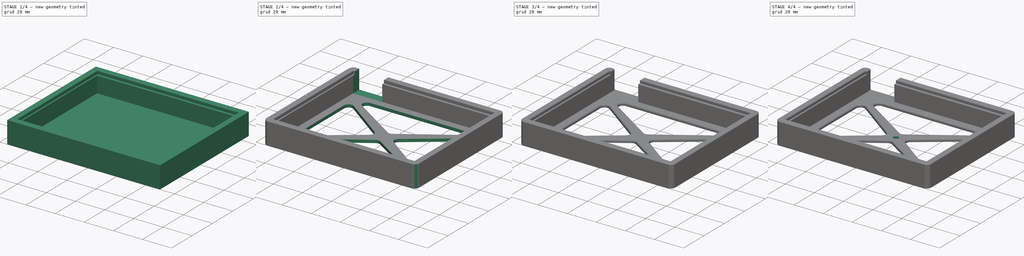
[diagram: build sequence overview — one tinted view per stage of 4, left to right]
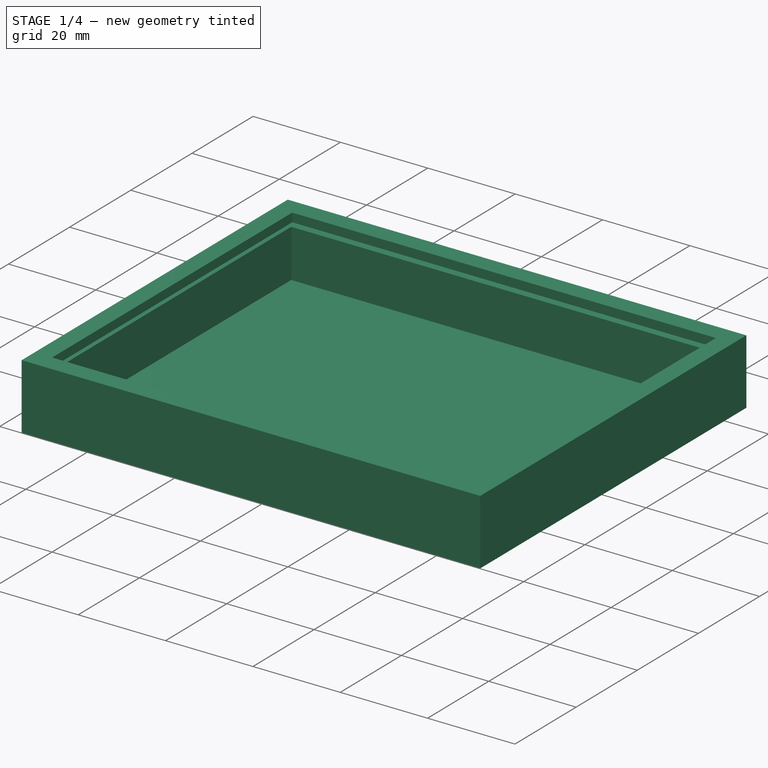
[diagram: stage 1 of 4 — iso view after this stage's code; geometry added in this stage tinted green]
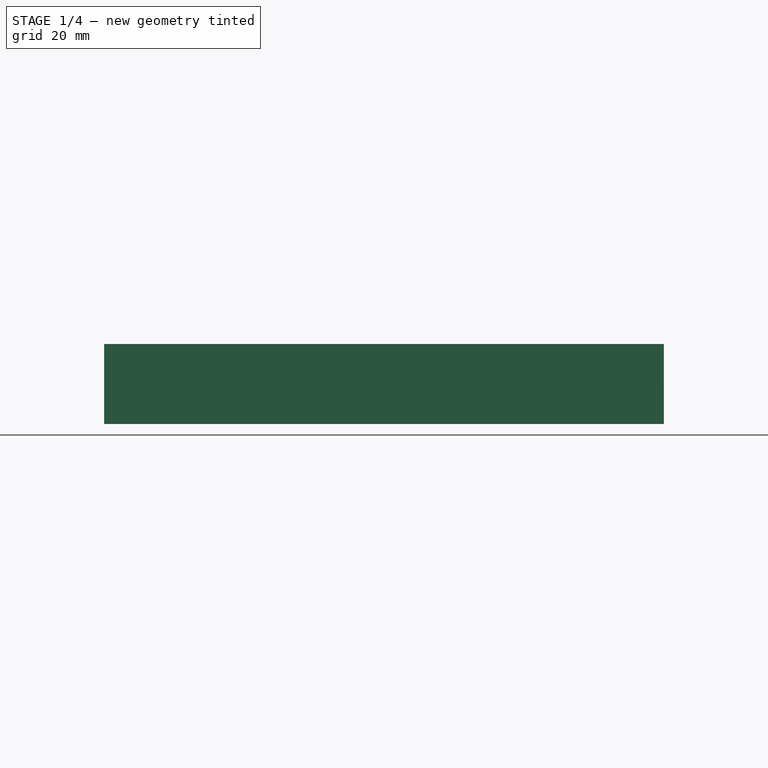
[diagram: stage 1 of 4 — front view after this stage's code; geometry added in this stage tinted green]
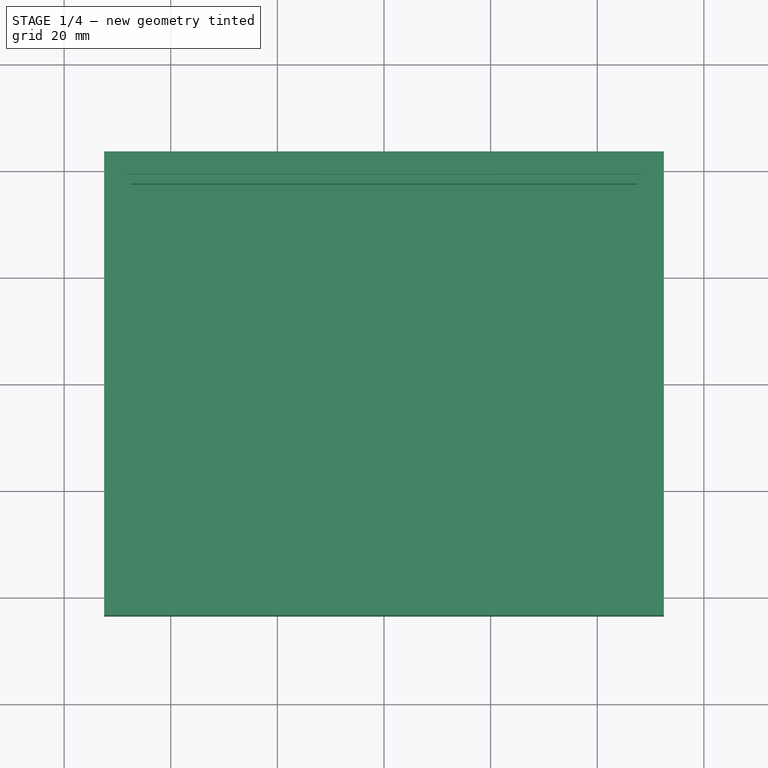
[diagram: stage 1 of 4 — top view after this stage's code; geometry added in this stage tinted green]
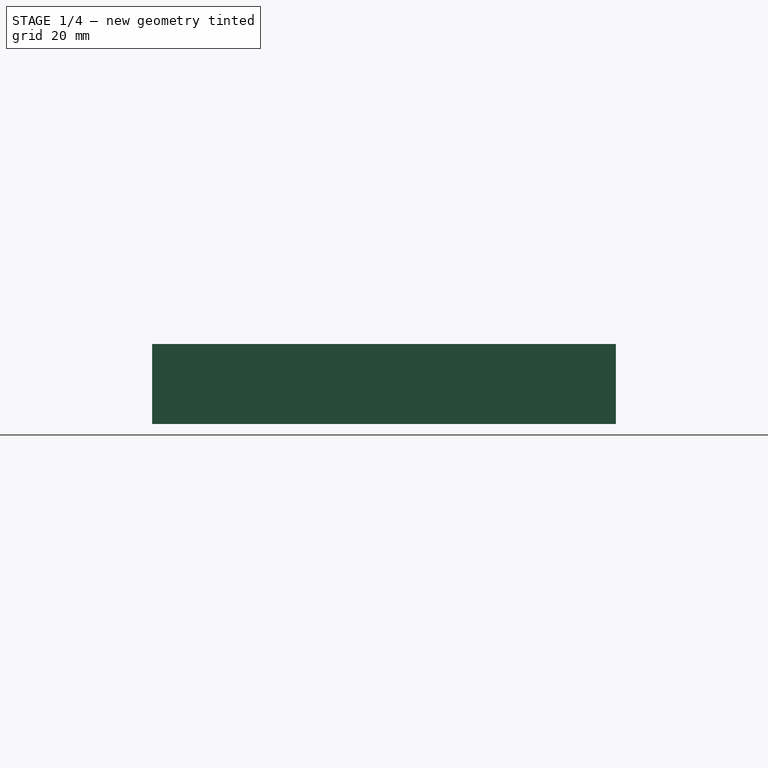
[diagram: stage 1 of 4 — right view after this stage's code; geometry added in this stage tinted green]
FCSTD DOCUMENT  (FreeCAD 0.20R)
Label: dpad-case
License: All rights reserved
LicenseURL: http://en.wikipedia.org/wiki/All_rights_reserved
objects: PartDesign::Fillet×7, Sketcher::SketchObject×6, PartDesign::Pocket×5, PartDesign::Pad×1, PartDesign::Body×1
note: 33 computed .brp shape members not serialized (recipe doc carries the construction recipe); baked Part::Feature solids carry a one-line shape summary decoded from their .brp

FEATURE [Sketcher::SketchObject] Sketch
  FullyConstrained = true
  MapMode = 5
  Support = -> [XY_Plane]
  sketch-geometry (7):
    g0: LineSegment StartX=-52.5 StartY=43.5 StartZ=0 EndX=52.5 EndY=43.5 EndZ=0
    g1: LineSegment StartX=52.5 StartY=43.5 StartZ=0 EndX=52.5 EndY=-43.5 EndZ=0
    g2: LineSegment StartX=52.5 StartY=-43.5 StartZ=0 EndX=-52.5 EndY=-43.5 EndZ=0
    g3: LineSegment StartX=-52.5 StartY=-43.5 StartZ=0 EndX=-52.5 EndY=43.5 EndZ=0
    g4: LineSegment StartX=-52.5 StartY=43.5 StartZ=0 EndX=52.5 EndY=-43.5 EndZ=0
    g5: LineSegment StartX=52.5 StartY=43.5 StartZ=0 EndX=-52.5 EndY=-43.5 EndZ=0
    g6: GeomPoint X=0 Y=0 Z=0
  constraints (17):
    c: Coincident(g0,g1)
    c: Coincident(g1,g2)
    c: Coincident(g2,g3)
    c: Coincident(g3,g0)
    c: Horizontal(g0)
    c: Horizontal(g2)
    c: Vertical(g1)
    c: Vertical(g3)
    c: Coincident(g4,g0)
    c: Coincident(g4,g1)
    c: Coincident(g5,g0)
    c: Coincident(g5,g2)
    c: PointOnObject(g6,g5)
    c: PointOnObject(g6,g4)
    c: Coincident(g6,g-1)
    c: DistanceX(g0,g0) = 105
    c: DistanceY(g3,g3) = 87
FEATURE [PartDesign::Pad] Pad
  Direction = (0,0,1)
  Length = 15
  Length2 = 10
  Profile = -> Sketch
  ReferenceAxis = -> Sketch [N_Axis]
  Type = 0
FEATURE [Sketcher::SketchObject] Sketch001
  FullyConstrained = true
  MapMode = 5
  Placement = pos=(0,0,15) rot=(0,0,1;0rad)
  Support = -> [Pad]
  sketch-geometry (7):
    g0: LineSegment StartX=-48.5 StartY=39.25 StartZ=0 EndX=48.5 EndY=39.25 EndZ=0
    g1: LineSegment StartX=48.5 StartY=39.25 StartZ=0 EndX=48.5 EndY=-39.25 EndZ=0
    g2: LineSegment StartX=48.5 StartY=-39.25 StartZ=0 EndX=-48.5 EndY=-39.25 EndZ=0
    g3: LineSegment StartX=-48.5 StartY=-39.25 StartZ=0 EndX=-48.5 EndY=39.25 EndZ=0
    g4: LineSegment StartX=-48.5 StartY=39.25 StartZ=0 EndX=48.5 EndY=-39.25 EndZ=0
    g5: LineSegment StartX=-48.5 StartY=-39.25 StartZ=0 EndX=48.5 EndY=39.25 EndZ=0
    g6: GeomPoint X=0 Y=0 Z=0
  constraints (17):
    c: Coincident(g0,g1)
    c: Coincident(g1,g2)
    c: Coincident(g2,g3)
    c: Coincident(g3,g0)
    c: Horizontal(g0)
    c: Horizontal(g2)
    c: Vertical(g1)
    c: Vertical(g3)
    c: Coincident(g4,g0)
    c: Coincident(g4,g1)
    c: Coincident(g5,g2)
    c: Coincident(g5,g0)
    c: PointOnObject(g6,g4)
    c: PointOnObject(g6,g5)
    c: Coincident(g6,g-1)
    c: DistanceX(g0,g0) = 97
    c: DistanceY(g3,g3) = 78.5
FEATURE [PartDesign::Pocket] Pocket
  BaseFeature = -> Pad
  Direction = (0,0,-1)
  Length = 2
  Length2 = 5
  Profile = -> Sketch001
  ReferenceAxis = -> Sketch001 [N_Axis]
  Type = 0
FEATURE [Sketcher::SketchObject] Sketch002
  FullyConstrained = true
  MapMode = 5
  Placement = pos=(0,0,13) rot=(0,0,1;0rad)
  Support = -> [Pocket]
  sketch-geometry (7):
    g0: LineSegment StartX=-47.5 StartY=37.5 StartZ=0 EndX=47.5 EndY=37.5 EndZ=0
    g1: LineSegment StartX=47.5 StartY=37.5 StartZ=0 EndX=47.5 EndY=-37.5 EndZ=0
    g2: LineSegment StartX=47.5 StartY=-37.5 StartZ=0 EndX=-47.5 EndY=-37.5 EndZ=0
    g3: LineSegment StartX=-47.5 StartY=-37.5 StartZ=0 EndX=-47.5 EndY=37.5 EndZ=0
    g4: LineSegment StartX=-47.5 StartY=37.5 StartZ=0 EndX=47.5 EndY=-37.5 EndZ=0
    g5: LineSegment StartX=47.5 StartY=37.5 StartZ=0 EndX=-47.5 EndY=-37.5 EndZ=0
    g6: GeomPoint X=0 Y=0 Z=0
  constraints (17):
    c: Coincident(g0,g1)
    c: Coincident(g1,g2)
    c: Coincident(g2,g3)
    c: Coincident(g3,g0)
    c: Horizontal(g0)
    c: Horizontal(g2)
    c: Vertical(g1)
    c: Vertical(g3)
    c: Coincident(g4,g0)
    c: Coincident(g4,g1)
    c: Coincident(g5,g0)
    c: Coincident(g5,g2)
    c: PointOnObject(g6,g4)
    c: PointOnObject(g6,g5)
    c: Coincident(g-1,g6)
    c: DistanceX(g0,g0) = 95
    c: DistanceY(g3,g3) = 75
FEATURE [PartDesign::Pocket] Pocket001
  BaseFeature = -> Pocket
  Direction = (0,0,-1)
  Length = 11
  Length2 = 5
  Profile = -> Sketch002
  ReferenceAxis = -> Sketch002 [N_Axis]
  Type = 0
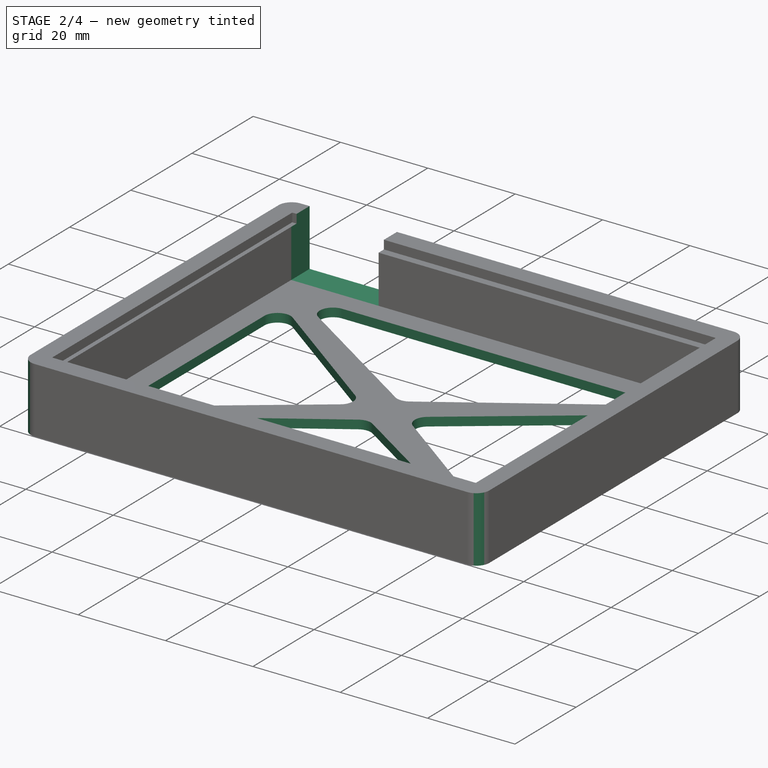
[diagram: stage 2 of 4 — iso view after this stage's code; geometry added in this stage tinted green]
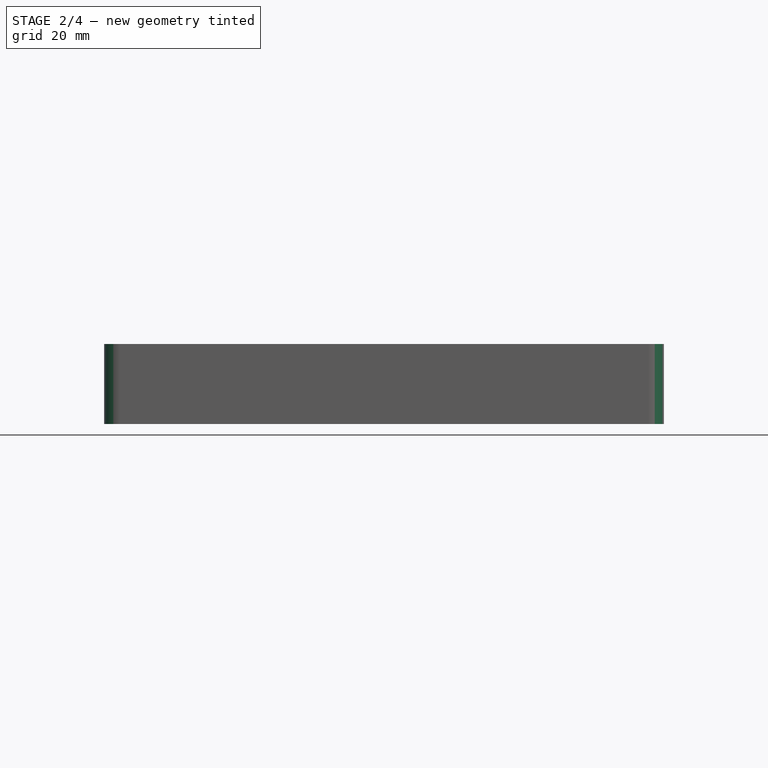
[diagram: stage 2 of 4 — front view after this stage's code; geometry added in this stage tinted green]
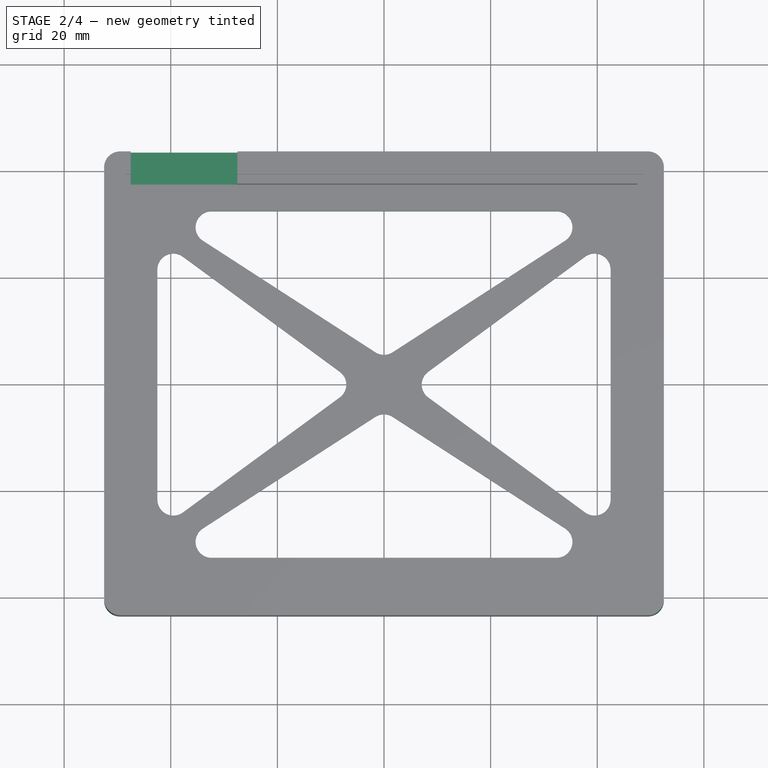
[diagram: stage 2 of 4 — top view after this stage's code; geometry added in this stage tinted green]
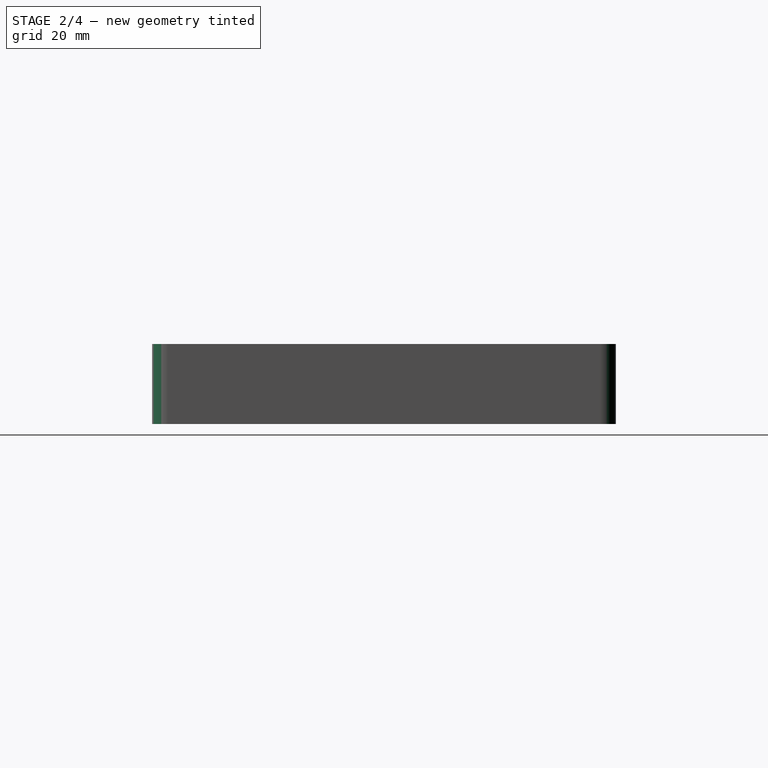
[diagram: stage 2 of 4 — right view after this stage's code; geometry added in this stage tinted green]
FEATURE [Sketcher::SketchObject] Sketch003
  ExternalGeometry = -> [Pocket001]
  FullyConstrained = true
  MapMode = 5
  Placement = pos=(0,43.5,0) rot=(0,0.707107,0.707107;3.14159rad)
  Support = -> [Pocket001]
  sketch-geometry (4):
    g0: LineSegment StartX=47.5 StartY=15 StartZ=0 EndX=27.5 EndY=15 EndZ=0
    g1: LineSegment StartX=27.5 StartY=15 StartZ=0 EndX=27.5 EndY=2 EndZ=0
    g2: LineSegment StartX=27.5 StartY=2 StartZ=0 EndX=47.5 EndY=2 EndZ=0
    g3: LineSegment StartX=47.5 StartY=2 StartZ=0 EndX=47.5 EndY=15 EndZ=0
  constraints (11):
    c: Coincident(g0,g1)
    c: Coincident(g1,g2)
    c: Coincident(g2,g3)
    c: Coincident(g3,g0)
    c: Horizontal(g0)
    c: Horizontal(g2)
    c: Vertical(g1)
    c: Vertical(g3)
    c: DistanceX(g0,g0) = 20
    c: Coincident(g2,g-3)
    c: PointOnObject(g0,g-4)
FEATURE [PartDesign::Pocket] Pocket002
  BaseFeature = -> Pocket001
  Direction = (0,-1,2e-16)
  Length = 6
  Length2 = 5
  Profile = -> Sketch003
  ReferenceAxis = -> Sketch003 [N_Axis]
  Type = 0
FEATURE [Sketcher::SketchObject] Sketch004
  ExternalGeometry = -> [Pocket002]
  FullyConstrained = true
  MapMode = 5
  Placement = pos=(0,0,2) rot=(0,0,1;0rad)
  Support = -> [Pocket002]
  sketch-geometry (12):
    g0: LineSegment StartX=-42.5 StartY=32.5 StartZ=0 EndX=0 EndY=5 EndZ=0
    g1: LineSegment StartX=0 StartY=5 StartZ=0 EndX=42.5 EndY=32.5 EndZ=0
    g2: LineSegment StartX=42.5 StartY=32.5 StartZ=0 EndX=-42.5 EndY=32.5 EndZ=0
    g3: LineSegment StartX=-42.5 StartY=-32.5 StartZ=0 EndX=0 EndY=-5 EndZ=0
    g4: LineSegment StartX=0 StartY=-5 StartZ=0 EndX=42.5 EndY=-32.5 EndZ=0
    g5: LineSegment StartX=42.5 StartY=-32.5 StartZ=0 EndX=-42.5 EndY=-32.5 EndZ=0
    g6: LineSegment StartX=42.5 StartY=27.5 StartZ=0 EndX=42.5 EndY=-27.5 EndZ=0
    g7: LineSegment StartX=42.5 StartY=-27.5 StartZ=0 EndX=5 EndY=0 EndZ=0
    g8: LineSegment StartX=5 StartY=0 StartZ=0 EndX=42.5 EndY=27.5 EndZ=0
    g9: LineSegment StartX=-42.5 StartY=27.5 StartZ=0 EndX=-5 EndY=0 EndZ=0
    g10: LineSegment StartX=-5 StartY=0 StartZ=0 EndX=-42.5 EndY=-27.5 EndZ=0
    g11: LineSegment StartX=-42.5 StartY=-27.5 StartZ=0 EndX=-42.5 EndY=27.5 EndZ=0
  constraints (29):
    c: Coincident(g0,g1)
    c: Coincident(g1,g2)
    c: Coincident(g2,g0)
    c: Horizontal(g2)
    c: DistanceY(g0,g-3) = 5
    c: DistanceX(g-3,g0) = 5
    c: DistanceX(g1,g-4) = 5
    c: PointOnObject(g0,g-2)
    c: DistanceY(g-1,g0) = 5
    c: Coincident(g3,g4)
    c: Coincident(g4,g5)
    c: Coincident(g5,g3)
    c: Symmetric(g0,g3,g-1)
    c: Symmetric(g3,g0,g-1)
    c: Symmetric(g4,g1,g-1)
    c: Coincident(g6,g7)
    c: Coincident(g7,g8)
    c: Coincident(g8,g6)
    c: Vertical(g6,g1)
    c: DistanceY(g6,g1) = 5
    c: PointOnObject(g7,g-1)
    c: Symmetric(g6,g6,g-1)
    c: DistanceX(g-1,g7) = 5
    c: Coincident(g9,g10)
    c: Coincident(g10,g11)
    c: Coincident(g11,g9)
    c: Symmetric(g9,g6,g-2)
    c: Symmetric(g10,g6,g-2)
    c: Symmetric(g9,g7,g-2)
FEATURE [PartDesign::Pocket] Pocket003
  BaseFeature = -> Pocket002
  Direction = (0,0,-1)
  Length = 2
  Length2 = 5
  Profile = -> Sketch004
  ReferenceAxis = -> Sketch004 [N_Axis]
  Type = 0
FEATURE [PartDesign::Fillet] Fillet
  Base = -> Pocket003 [Edge64,Edge54,Edge48,Edge57,Edge63,Edge52,Edge46,Edge51,Edge66,Edge58,Edge45,Edge60,Edge24,Edge44,Edge2,Edge8]
  BaseFeature = -> Pocket003
  Radius = 3
  SupportTransform = false
  UseAllEdges = false
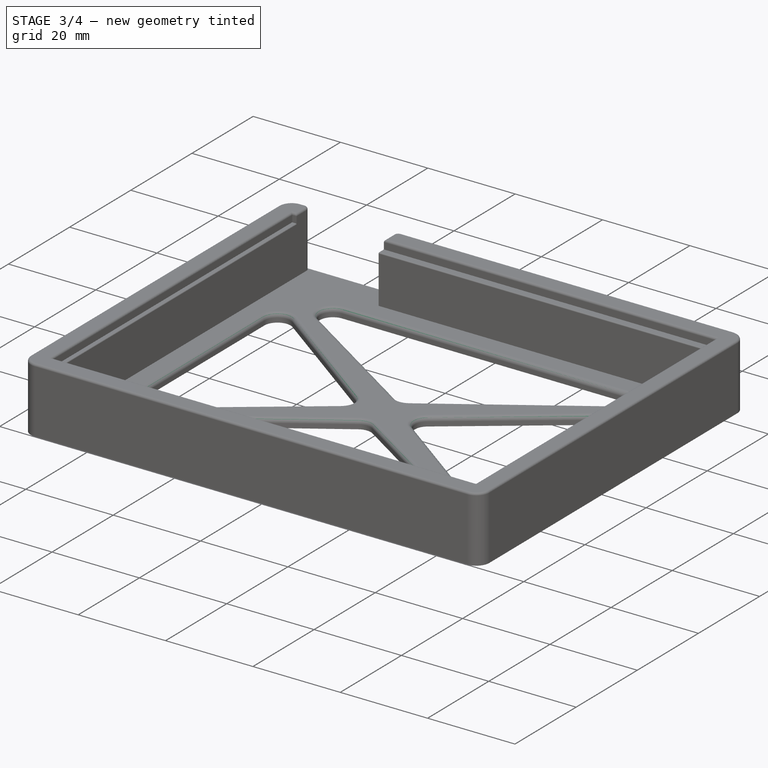
[diagram: stage 3 of 4 — iso view after this stage's code; geometry added in this stage tinted green]
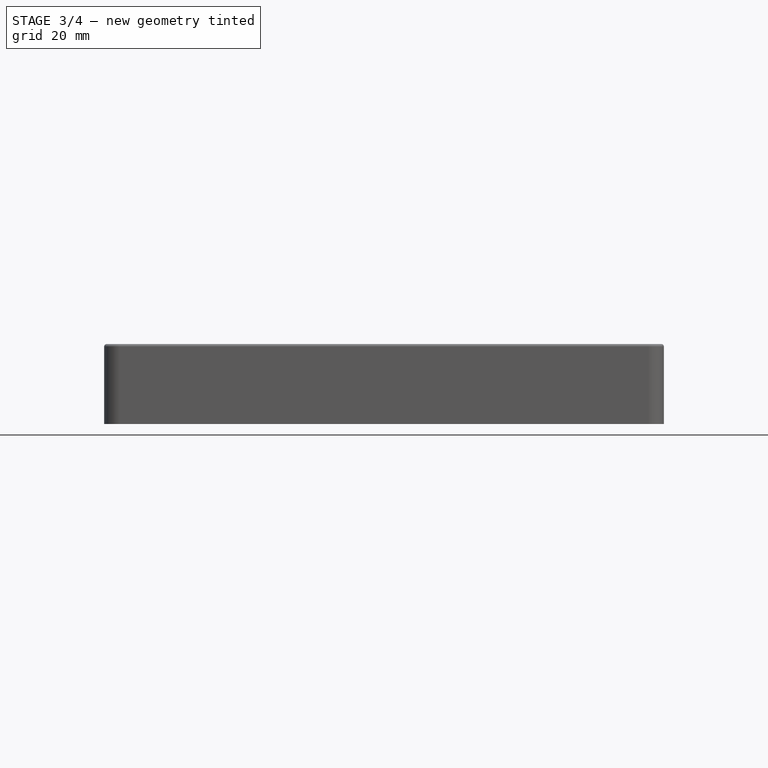
[diagram: stage 3 of 4 — front view after this stage's code; geometry added in this stage tinted green]
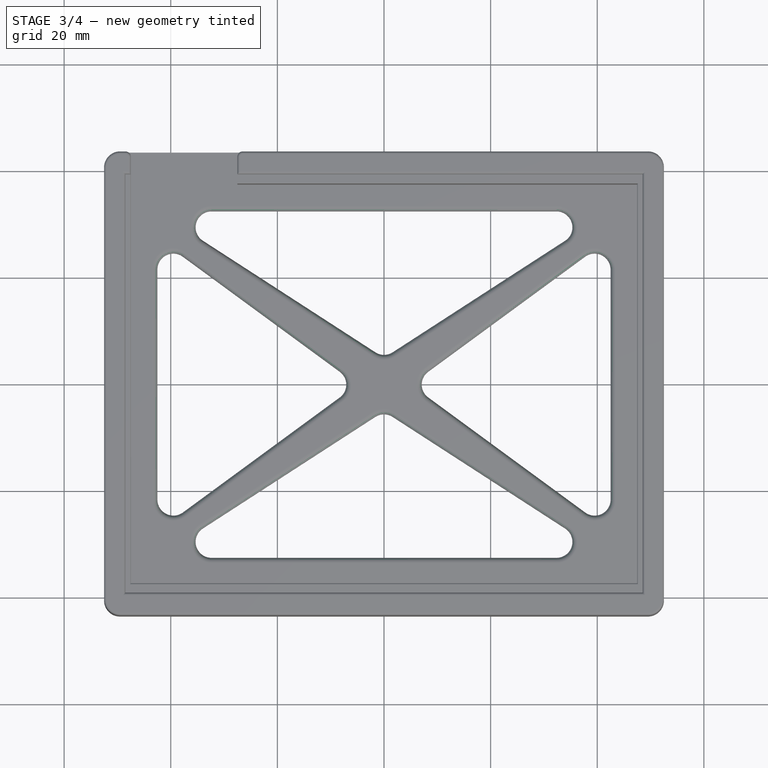
[diagram: stage 3 of 4 — top view after this stage's code; geometry added in this stage tinted green]
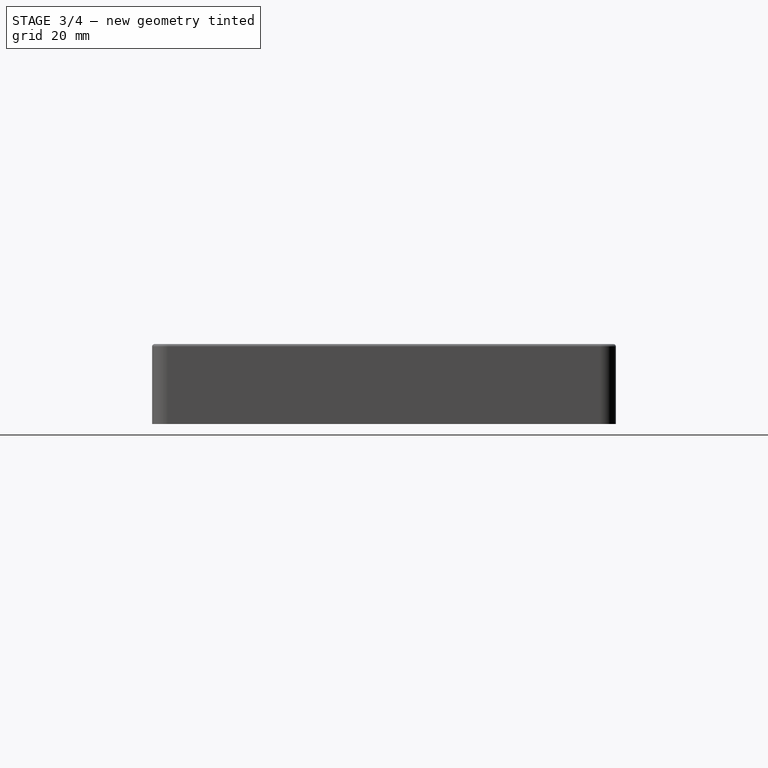
[diagram: stage 3 of 4 — right view after this stage's code; geometry added in this stage tinted green]
FEATURE [PartDesign::Fillet] Fillet001
  Base = -> Fillet [Edge7,Edge6]
  BaseFeature = -> Fillet
  Radius = 1
  SupportTransform = false
  UseAllEdges = false
FEATURE [PartDesign::Fillet] Fillet002
  Base = -> Fillet001 [Face2]
  BaseFeature = -> Fillet001
  Radius = 0.5
  SupportTransform = false
  UseAllEdges = false
FEATURE [PartDesign::Fillet] Fillet003
  Base = -> Fillet002 [Edge109,Edge100,Edge90,Edge106]
  BaseFeature = -> Fillet002
  Radius = 1
  SupportTransform = false
  UseAllEdges = false
FEATURE [PartDesign::Fillet] Fillet004
  Base = -> Fillet003 [Edge51,Edge52,Edge56,Edge57]
  BaseFeature = -> Fillet003
  Radius = 0.2
  SupportTransform = false
  UseAllEdges = false
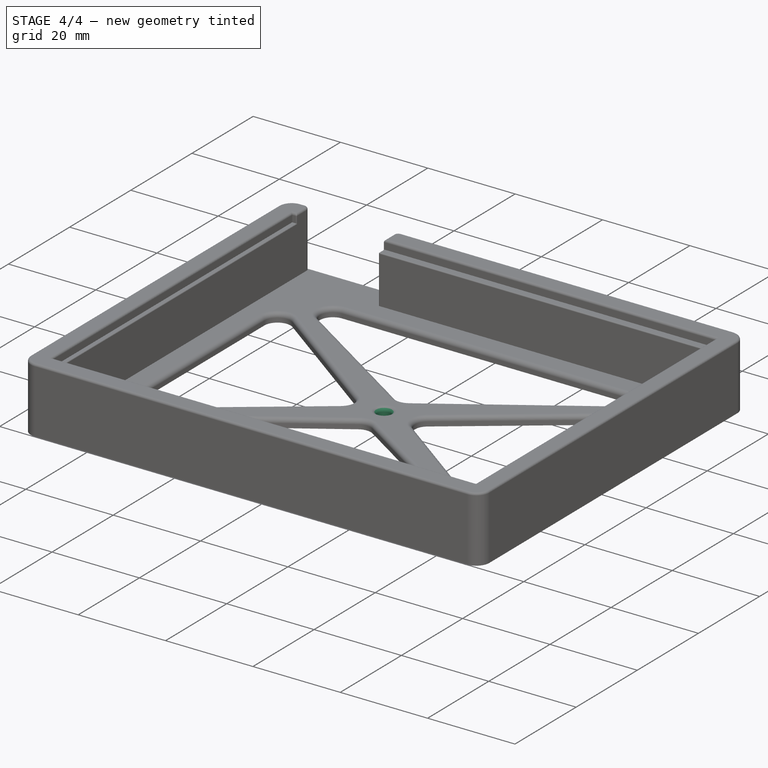
[diagram: stage 4 of 4 — iso view after this stage's code; geometry added in this stage tinted green]
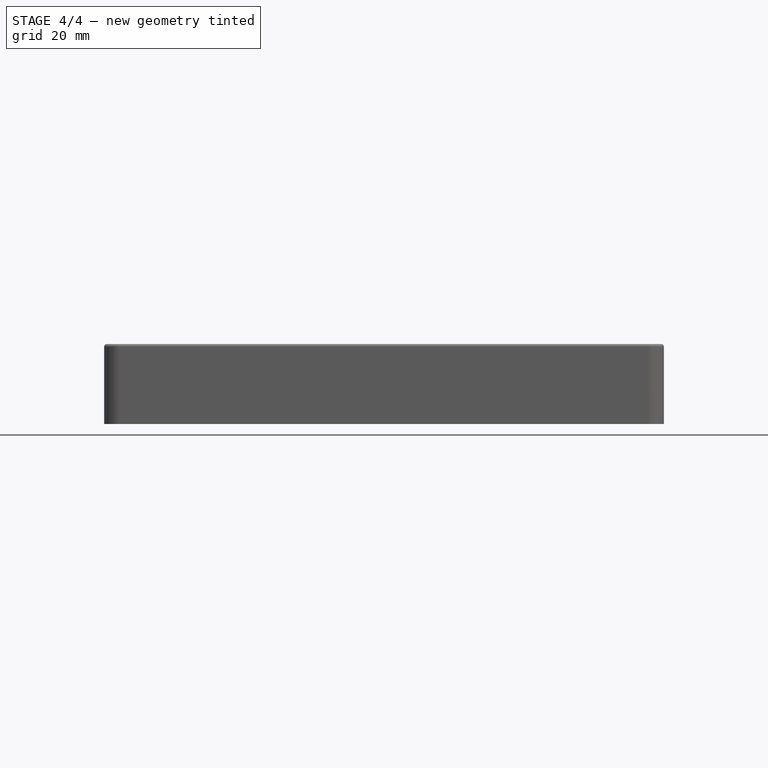
[diagram: stage 4 of 4 — front view after this stage's code; geometry added in this stage tinted green]
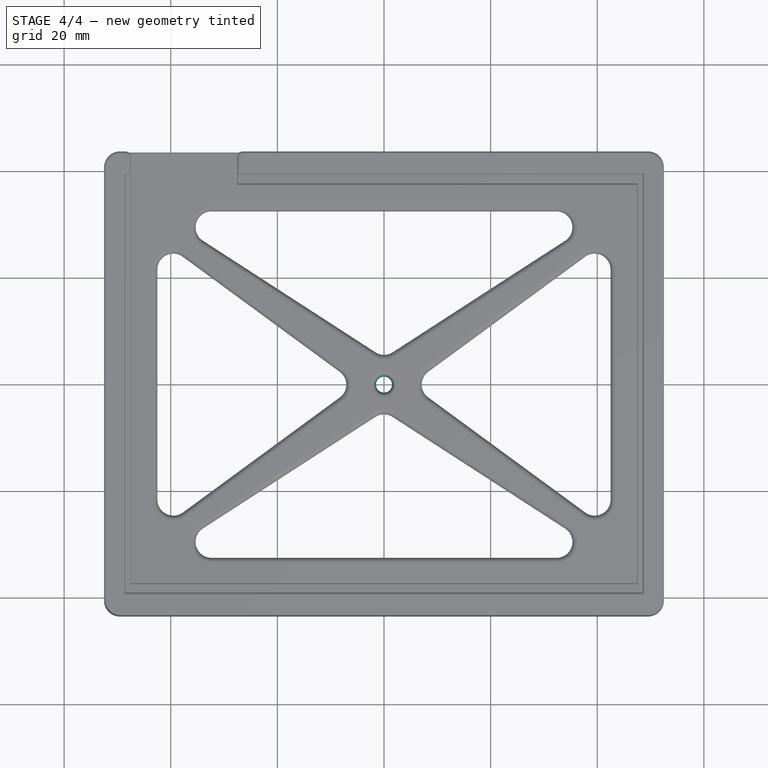
[diagram: stage 4 of 4 — top view after this stage's code; geometry added in this stage tinted green]
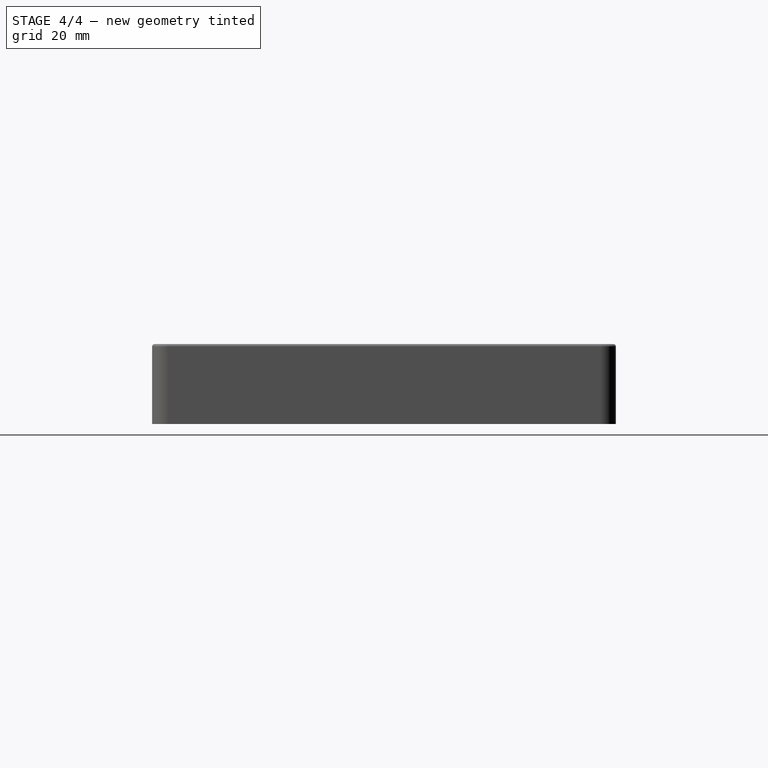
[diagram: stage 4 of 4 — right view after this stage's code; geometry added in this stage tinted green]
FEATURE [PartDesign::Fillet] Fillet005
  Base = -> Fillet004 [Edge56,Edge42,Edge73]
  BaseFeature = -> Fillet004
  Radius = 0.2
  SupportTransform = false
  UseAllEdges = false
FEATURE [Sketcher::SketchObject] Sketch005
  FullyConstrained = true
  MapMode = 5
  Placement = pos=(0,0,2) rot=(0,0,1;0rad)
  Support = -> [Fillet005]
  sketch-geometry (1):
    g0: Circle CenterX=0 CenterY=0 CenterZ=0 NormalX=0 NormalY=0 NormalZ=1 AngleXU=0 Radius=1.5
  constraints (2):
    c: Coincident(g0,g-1)
    c: Diameter(g0) = 3
FEATURE [PartDesign::Pocket] Pocket004
  BaseFeature = -> Fillet005
  Direction = (0,0,-1)
  Length = 5
  Length2 = 5
  Profile = -> Sketch005
  ReferenceAxis = -> Sketch005 [N_Axis]
  Type = 0
FEATURE [PartDesign::Fillet] Fillet006
  Base = -> Pocket004 [Edge19]
  BaseFeature = -> Pocket004
  Radius = 1
  SupportTransform = false
  UseAllEdges = false
FEATURE [PartDesign::Body] Body
  Group = -> [Sketch,Pad,Sketch001,Pocket,Sketch002,Pocket001,Sketch003,Pocket002,Sketch004,Pocket003,Fillet,Fillet001,Fillet002,Fillet003,Fillet004,Fillet005,Sketch005,Pocket004,Fillet006]
  Origin = -> Origin
  Tip = -> Fillet006
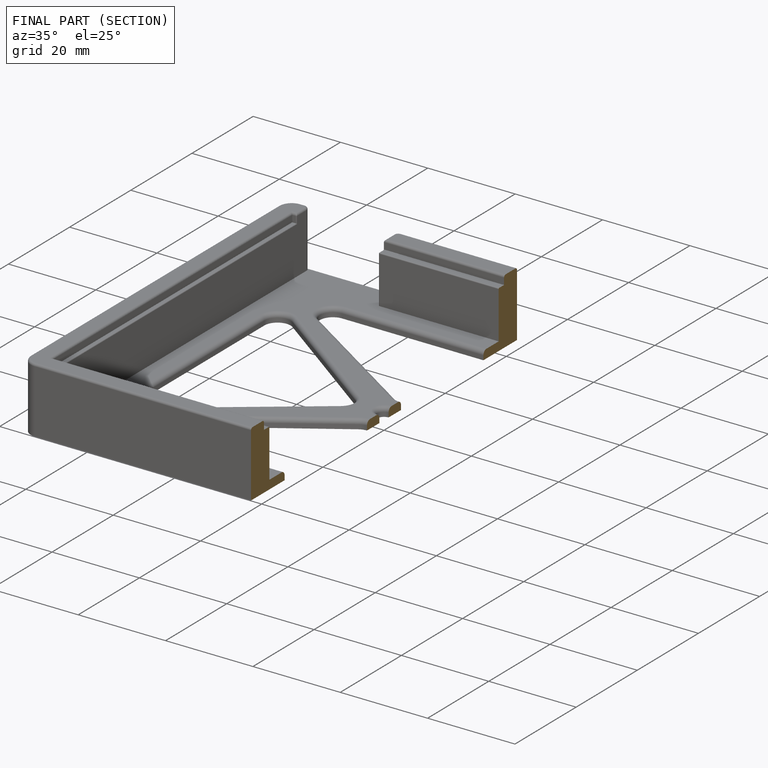
[diagram: finished part — half-section view (interior)]
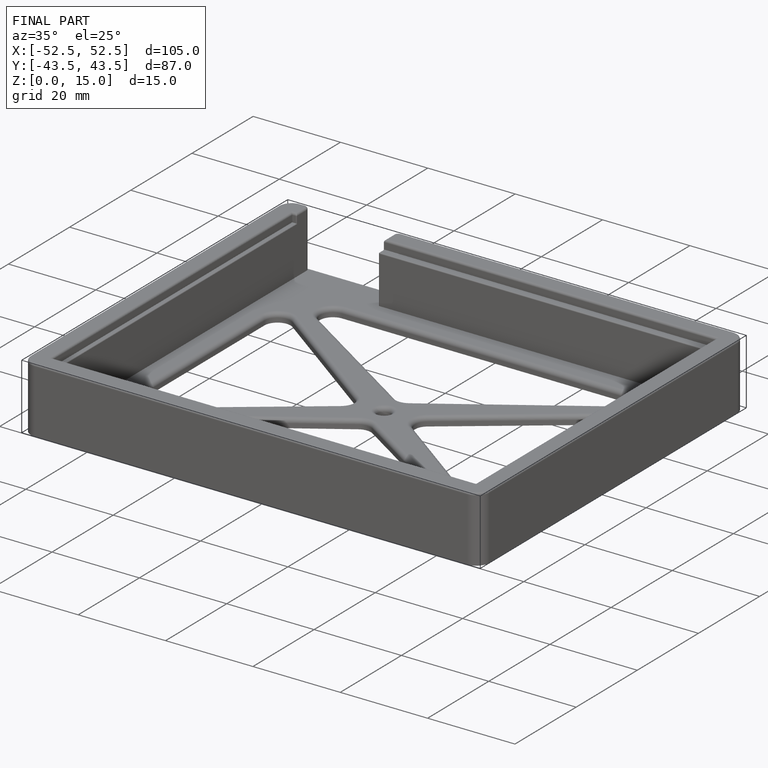
[diagram: finished part — iso view with bounding-box wireframe]
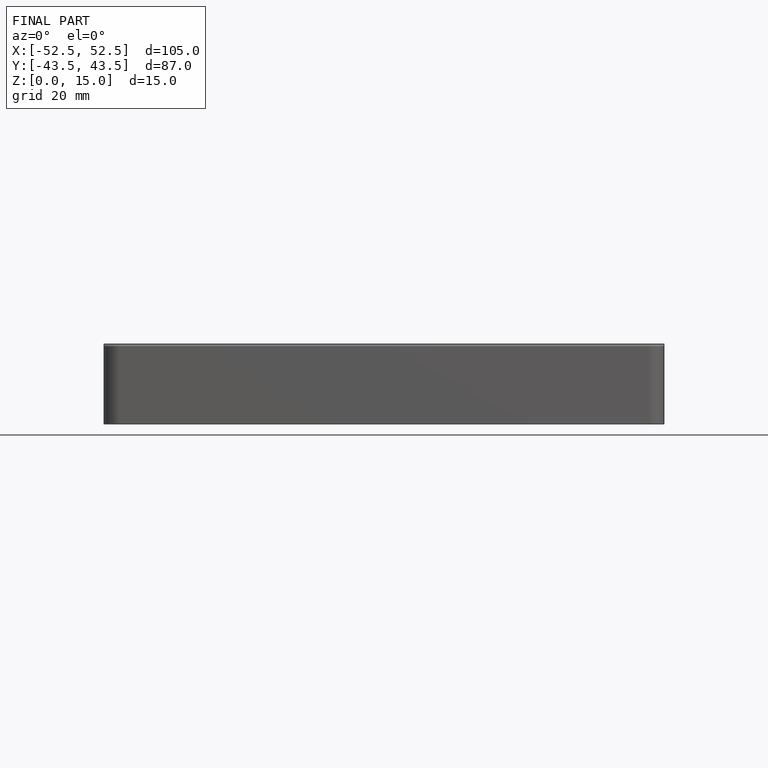
[diagram: finished part — front view with bounding-box wireframe]
